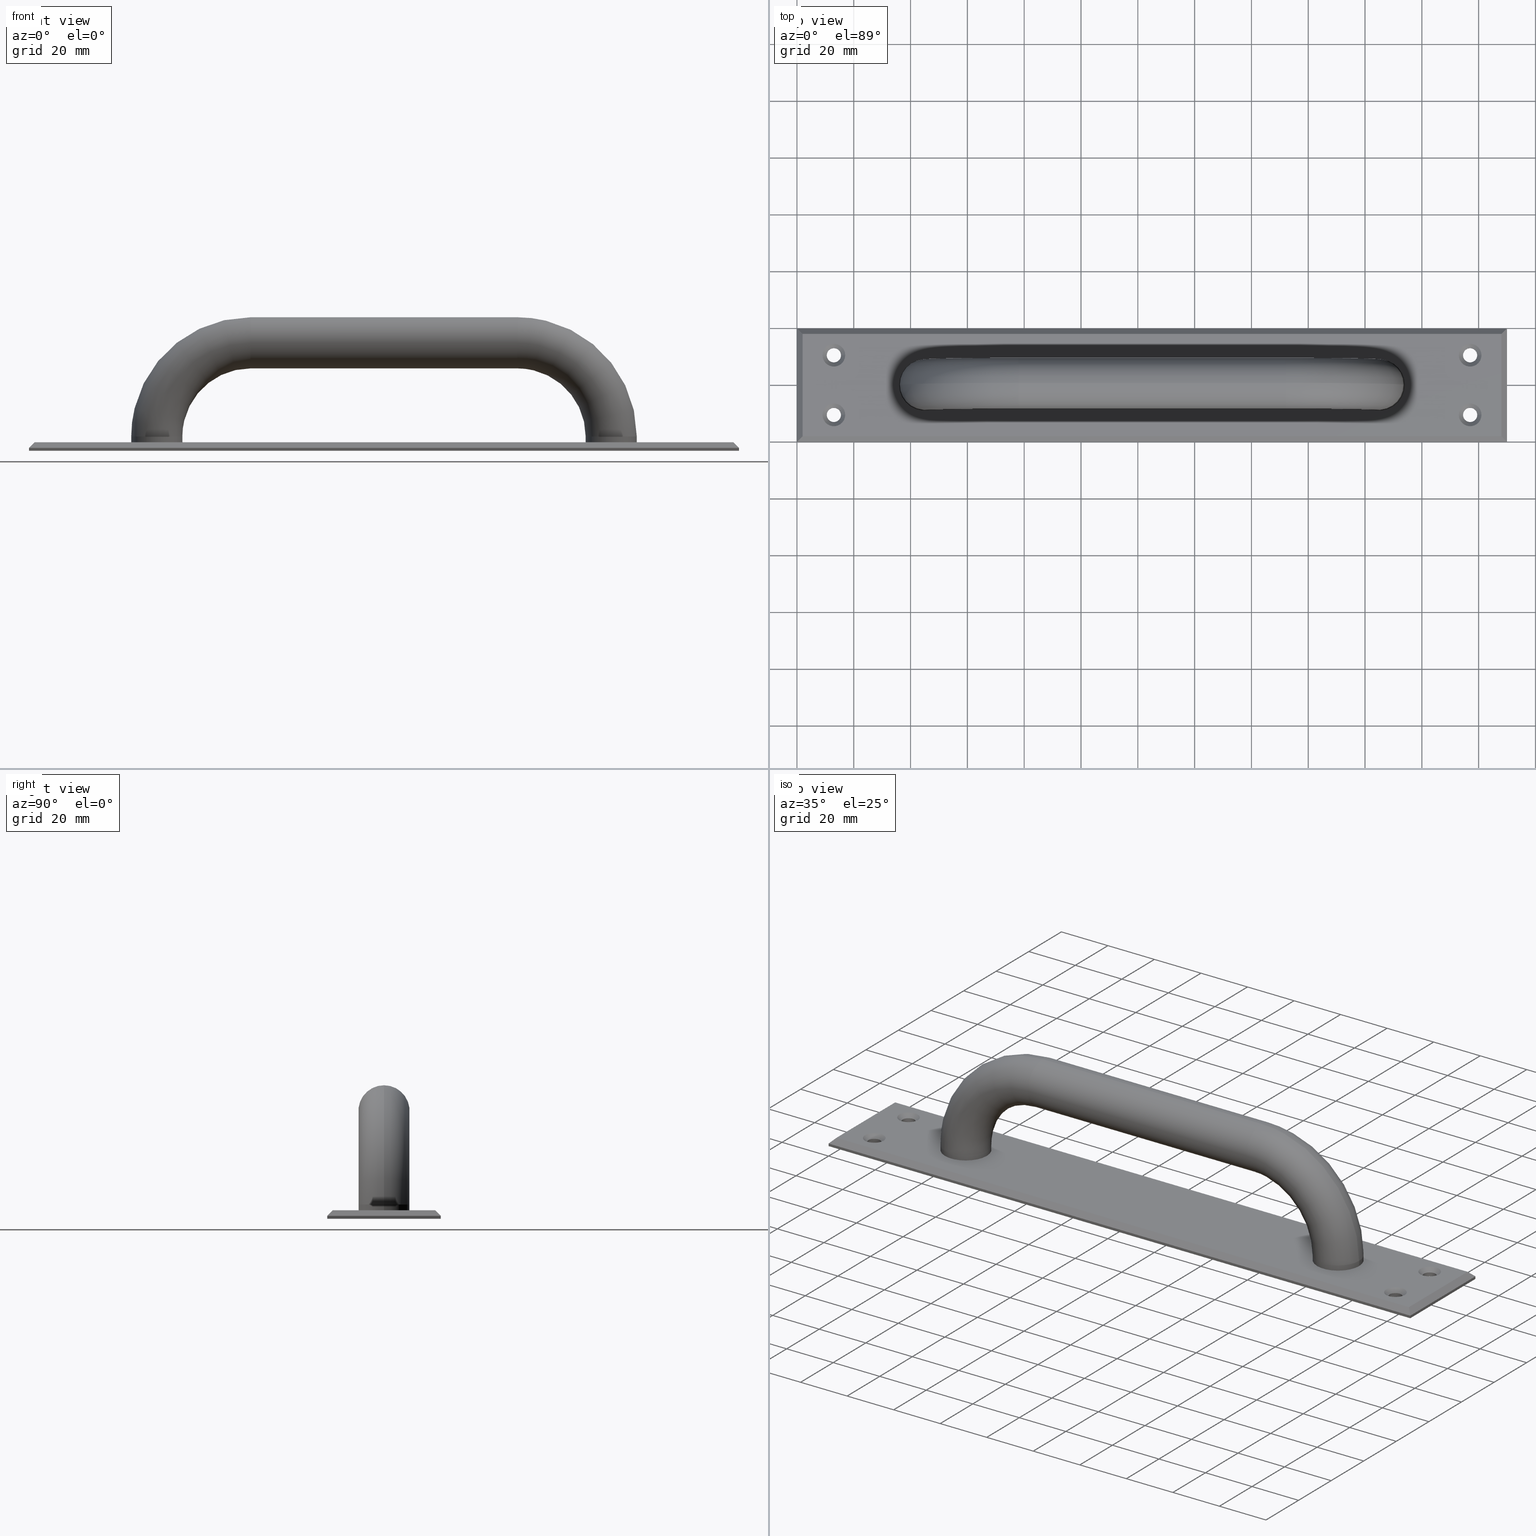
[diagram: canonical four-view strip — front | top / right | iso, engineering-drawing reading convention]
A machine part, canonical four-view strip (front | top / right | iso — engineering-drawing reading convention). The complete STEP part file that produces these views, byte-faithful:
ISO-10303-21;
HEADER;
/* Generated by software containing ST-Developer
 * from STEP Tools, Inc. (www.steptools.com) 
 */

FILE_DESCRIPTION(
/* description */ (''),
/* implementation_level */ '2;1');

FILE_NAME(
/* name */ '\\\\SYNOLOGYNAS\\web\\db2\\A-AL1-4\\\X2\B3C4BA74\X0\\\DR_A
-AL1-4.stp',
/* time_stamp */ '2024-07-04T09:51:43+09:00',
/* author */ ('user'),
/* organization */ (''),
/* preprocessor_version */ 'ST-DEVELOPER v15.6',
/* originating_system */ 'Autodesk Inventor 2015',
/* authorisation */ '');

FILE_SCHEMA (('AUTOMOTIVE_DESIGN { 1 0 10303 214 3 1 1 }'));
ENDSEC;

DATA;
#10=MECHANICAL_DESIGN_GEOMETRIC_PRESENTATION_REPRESENTATION('',(#13),#597);
#11=SHAPE_REPRESENTATION_RELATIONSHIP('SRR','None',#606,#12);
#12=ADVANCED_BREP_SHAPE_REPRESENTATION($,(#14),#596);
#13=STYLED_ITEM('',(#615),#14);
#14=MANIFOLD_SOLID_BREP('\X2\C194B9ACB4DC\X0\1',#355);
#15=LINE('',#555,#35);
#16=LINE('',#557,#36);
#17=LINE('',#559,#37);
#18=LINE('',#560,#38);
#19=LINE('',#563,#39);
#20=LINE('',#565,#40);
#21=LINE('',#566,#41);
#22=LINE('',#569,#42);
#23=LINE('',#570,#43);
#24=LINE('',#573,#44);
#25=LINE('',#574,#45);
#26=LINE('',#577,#46);
#27=LINE('',#579,#47);
#28=LINE('',#580,#48);
#29=LINE('',#583,#49);
#30=LINE('',#585,#50);
#31=LINE('',#586,#51);
#32=LINE('',#588,#52);
#33=LINE('',#590,#53);
#34=LINE('',#592,#54);
#35=VECTOR('',#464,3.46410161513775);
#36=VECTOR('',#465,36.);
#37=VECTOR('',#466,3.46410161513776);
#38=VECTOR('',#467,40.);
#39=VECTOR('',#470,246.);
#40=VECTOR('',#471,36.);
#41=VECTOR('',#472,246.);
#42=VECTOR('',#475,250.);
#43=VECTOR('',#476,3.46410161513775);
#44=VECTOR('',#479,3.46410161513775);
#45=VECTOR('',#480,40.);
#46=VECTOR('',#483,1.);
#47=VECTOR('',#484,40.);
#48=VECTOR('',#485,1.);
#49=VECTOR('',#488,1.);
#50=VECTOR('',#489,40.);
#51=VECTOR('',#490,1.);
#52=VECTOR('',#493,250.);
#53=VECTOR('',#496,250.);
#54=VECTOR('',#499,250.);
#55=PLANE('',#388);
#56=PLANE('',#389);
#57=PLANE('',#390);
#58=PLANE('',#391);
#59=PLANE('',#392);
#60=PLANE('',#393);
#61=PLANE('',#394);
#62=PLANE('',#395);
#63=PLANE('',#396);
#64=PLANE('',#397);
#65=CONICAL_SURFACE('',#368,3.25,45.);
#66=CONICAL_SURFACE('',#373,3.25,45.);
#67=CONICAL_SURFACE('',#378,3.25,45.);
#68=CONICAL_SURFACE('',#383,3.25,45.);
#69=TOROIDAL_SURFACE('',#363,33.,9.);
#70=TOROIDAL_SURFACE('',#367,33.,9.);
#71=FACE_BOUND('',#118,.T.);
#72=FACE_BOUND('',#120,.T.);
#73=FACE_BOUND('',#122,.T.);
#74=FACE_BOUND('',#124,.T.);
#75=FACE_BOUND('',#126,.T.);
#76=FACE_BOUND('',#128,.T.);
#77=FACE_BOUND('',#130,.T.);
#78=FACE_BOUND('',#132,.T.);
#79=FACE_BOUND('',#134,.T.);
#80=FACE_BOUND('',#136,.T.);
#81=FACE_BOUND('',#138,.T.);
#82=FACE_BOUND('',#140,.T.);
#83=FACE_BOUND('',#142,.T.);
#84=FACE_BOUND('',#145,.T.);
#85=FACE_BOUND('',#146,.T.);
#86=FACE_BOUND('',#147,.T.);
#87=FACE_BOUND('',#148,.T.);
#88=FACE_BOUND('',#149,.T.);
#89=FACE_BOUND('',#150,.T.);
#90=FACE_BOUND('',#159,.T.);
#91=FACE_BOUND('',#160,.T.);
#92=FACE_BOUND('',#161,.T.);
#93=FACE_BOUND('',#162,.T.);
#94=FACE_OUTER_BOUND('',#117,.T.);
#95=FACE_OUTER_BOUND('',#119,.T.);
#96=FACE_OUTER_BOUND('',#121,.T.);
#97=FACE_OUTER_BOUND('',#123,.T.);
#98=FACE_OUTER_BOUND('',#125,.T.);
#99=FACE_OUTER_BOUND('',#127,.T.);
#100=FACE_OUTER_BOUND('',#129,.T.);
#101=FACE_OUTER_BOUND('',#131,.T.);
#102=FACE_OUTER_BOUND('',#133,.T.);
#103=FACE_OUTER_BOUND('',#135,.T.);
#104=FACE_OUTER_BOUND('',#137,.T.);
#105=FACE_OUTER_BOUND('',#139,.T.);
#106=FACE_OUTER_BOUND('',#141,.T.);
#107=FACE_OUTER_BOUND('',#143,.T.);
#108=FACE_OUTER_BOUND('',#144,.T.);
#109=FACE_OUTER_BOUND('',#151,.T.);
#110=FACE_OUTER_BOUND('',#152,.T.);
#111=FACE_OUTER_BOUND('',#153,.T.);
#112=FACE_OUTER_BOUND('',#154,.T.);
#113=FACE_OUTER_BOUND('',#155,.T.);
#114=FACE_OUTER_BOUND('',#156,.T.);
#115=FACE_OUTER_BOUND('',#157,.T.);
#116=FACE_OUTER_BOUND('',#158,.T.);
#117=EDGE_LOOP('',(#249));
#118=EDGE_LOOP('',(#250));
#119=EDGE_LOOP('',(#251));
#120=EDGE_LOOP('',(#252));
#121=EDGE_LOOP('',(#253));
#122=EDGE_LOOP('',(#254));
#123=EDGE_LOOP('',(#255));
#124=EDGE_LOOP('',(#256));
#125=EDGE_LOOP('',(#257));
#126=EDGE_LOOP('',(#258));
#127=EDGE_LOOP('',(#259));
#128=EDGE_LOOP('',(#260));
#129=EDGE_LOOP('',(#261));
#130=EDGE_LOOP('',(#262));
#131=EDGE_LOOP('',(#263));
#132=EDGE_LOOP('',(#264));
#133=EDGE_LOOP('',(#265));
#134=EDGE_LOOP('',(#266));
#135=EDGE_LOOP('',(#267));
#136=EDGE_LOOP('',(#268));
#137=EDGE_LOOP('',(#269));
#138=EDGE_LOOP('',(#270));
#139=EDGE_LOOP('',(#271));
#140=EDGE_LOOP('',(#272));
#141=EDGE_LOOP('',(#273));
#142=EDGE_LOOP('',(#274));
#143=EDGE_LOOP('',(#275,#276,#277,#278));
#144=EDGE_LOOP('',(#279,#280,#281,#282));
#145=EDGE_LOOP('',(#283));
#146=EDGE_LOOP('',(#284));
#147=EDGE_LOOP('',(#285));
#148=EDGE_LOOP('',(#286));
#149=EDGE_LOOP('',(#287));
#150=EDGE_LOOP('',(#288));
#151=EDGE_LOOP('',(#289,#290,#291,#292));
#152=EDGE_LOOP('',(#293,#294,#295,#296));
#153=EDGE_LOOP('',(#297,#298,#299,#300));
#154=EDGE_LOOP('',(#301,#302,#303,#304));
#155=EDGE_LOOP('',(#305,#306,#307,#308));
#156=EDGE_LOOP('',(#309,#310,#311,#312));
#157=EDGE_LOOP('',(#313,#314,#315,#316));
#158=EDGE_LOOP('',(#317,#318,#319,#320));
#159=EDGE_LOOP('',(#321));
#160=EDGE_LOOP('',(#322));
#161=EDGE_LOOP('',(#323));
#162=EDGE_LOOP('',(#324));
#163=CIRCLE('',#358,9.);
#164=CIRCLE('',#359,9.);
#165=CIRCLE('',#361,9.);
#166=CIRCLE('',#362,9.);
#167=CIRCLE('',#364,9.);
#168=CIRCLE('',#366,9.);
#169=CIRCLE('',#369,4.);
#170=CIRCLE('',#370,2.5);
#171=CIRCLE('',#372,2.5);
#172=CIRCLE('',#374,4.);
#173=CIRCLE('',#375,2.5);
#174=CIRCLE('',#377,2.5);
#175=CIRCLE('',#379,4.);
#176=CIRCLE('',#380,2.5);
#177=CIRCLE('',#382,2.5);
#178=CIRCLE('',#384,4.);
#179=CIRCLE('',#385,2.5);
#180=CIRCLE('',#387,2.5);
#181=VERTEX_POINT('',#504);
#182=VERTEX_POINT('',#506);
#183=VERTEX_POINT('',#509);
#184=VERTEX_POINT('',#511);
#185=VERTEX_POINT('',#514);
#186=VERTEX_POINT('',#517);
#187=VERTEX_POINT('',#521);
#188=VERTEX_POINT('',#523);
#189=VERTEX_POINT('',#526);
#190=VERTEX_POINT('',#529);
#191=VERTEX_POINT('',#531);
#192=VERTEX_POINT('',#534);
#193=VERTEX_POINT('',#537);
#194=VERTEX_POINT('',#539);
#195=VERTEX_POINT('',#542);
#196=VERTEX_POINT('',#545);
#197=VERTEX_POINT('',#547);
#198=VERTEX_POINT('',#550);
#199=VERTEX_POINT('',#553);
#200=VERTEX_POINT('',#554);
#201=VERTEX_POINT('',#556);
#202=VERTEX_POINT('',#558);
#203=VERTEX_POINT('',#562);
#204=VERTEX_POINT('',#564);
#205=VERTEX_POINT('',#568);
#206=VERTEX_POINT('',#572);
#207=VERTEX_POINT('',#576);
#208=VERTEX_POINT('',#578);
#209=VERTEX_POINT('',#582);
#210=VERTEX_POINT('',#584);
#211=EDGE_CURVE('',#181,#181,#163,.T.);
#212=EDGE_CURVE('',#182,#182,#164,.T.);
#213=EDGE_CURVE('',#183,#183,#165,.T.);
#214=EDGE_CURVE('',#184,#184,#166,.T.);
#215=EDGE_CURVE('',#185,#185,#167,.T.);
#216=EDGE_CURVE('',#186,#186,#168,.T.);
#217=EDGE_CURVE('',#187,#187,#169,.T.);
#218=EDGE_CURVE('',#188,#188,#170,.T.);
#219=EDGE_CURVE('',#189,#189,#171,.T.);
#220=EDGE_CURVE('',#190,#190,#172,.T.);
#221=EDGE_CURVE('',#191,#191,#173,.T.);
#222=EDGE_CURVE('',#192,#192,#174,.T.);
#223=EDGE_CURVE('',#193,#193,#175,.T.);
#224=EDGE_CURVE('',#194,#194,#176,.T.);
#225=EDGE_CURVE('',#195,#195,#177,.T.);
#226=EDGE_CURVE('',#196,#196,#178,.T.);
#227=EDGE_CURVE('',#197,#197,#179,.T.);
#228=EDGE_CURVE('',#198,#198,#180,.T.);
#229=EDGE_CURVE('',#199,#200,#15,.T.);
#230=EDGE_CURVE('',#200,#201,#16,.T.);
#231=EDGE_CURVE('',#201,#202,#17,.T.);
#232=EDGE_CURVE('',#202,#199,#18,.T.);
#233=EDGE_CURVE('',#203,#200,#19,.T.);
#234=EDGE_CURVE('',#204,#203,#20,.T.);
#235=EDGE_CURVE('',#201,#204,#21,.T.);
#236=EDGE_CURVE('',#199,#205,#22,.T.);
#237=EDGE_CURVE('',#203,#205,#23,.T.);
#238=EDGE_CURVE('',#206,#204,#24,.T.);
#239=EDGE_CURVE('',#205,#206,#25,.T.);
#240=EDGE_CURVE('',#207,#205,#26,.T.);
#241=EDGE_CURVE('',#207,#208,#27,.T.);
#242=EDGE_CURVE('',#208,#206,#28,.T.);
#243=EDGE_CURVE('',#209,#202,#29,.T.);
#244=EDGE_CURVE('',#209,#210,#30,.T.);
#245=EDGE_CURVE('',#210,#199,#31,.T.);
#246=EDGE_CURVE('',#206,#202,#32,.T.);
#247=EDGE_CURVE('',#208,#209,#33,.T.);
#248=EDGE_CURVE('',#210,#207,#34,.T.);
#249=ORIENTED_EDGE('',*,*,#211,.F.);
#250=ORIENTED_EDGE('',*,*,#212,.F.);
#251=ORIENTED_EDGE('',*,*,#213,.T.);
#252=ORIENTED_EDGE('',*,*,#214,.F.);
#253=ORIENTED_EDGE('',*,*,#211,.T.);
#254=ORIENTED_EDGE('',*,*,#215,.F.);
#255=ORIENTED_EDGE('',*,*,#215,.T.);
#256=ORIENTED_EDGE('',*,*,#216,.F.);
#257=ORIENTED_EDGE('',*,*,#216,.T.);
#258=ORIENTED_EDGE('',*,*,#213,.F.);
#259=ORIENTED_EDGE('',*,*,#217,.F.);
#260=ORIENTED_EDGE('',*,*,#218,.F.);
#261=ORIENTED_EDGE('',*,*,#219,.F.);
#262=ORIENTED_EDGE('',*,*,#218,.T.);
#263=ORIENTED_EDGE('',*,*,#220,.F.);
#264=ORIENTED_EDGE('',*,*,#221,.F.);
#265=ORIENTED_EDGE('',*,*,#222,.F.);
#266=ORIENTED_EDGE('',*,*,#221,.T.);
#267=ORIENTED_EDGE('',*,*,#223,.F.);
#268=ORIENTED_EDGE('',*,*,#224,.F.);
#269=ORIENTED_EDGE('',*,*,#225,.F.);
#270=ORIENTED_EDGE('',*,*,#224,.T.);
#271=ORIENTED_EDGE('',*,*,#226,.F.);
#272=ORIENTED_EDGE('',*,*,#227,.F.);
#273=ORIENTED_EDGE('',*,*,#228,.F.);
#274=ORIENTED_EDGE('',*,*,#227,.T.);
#275=ORIENTED_EDGE('',*,*,#229,.T.);
#276=ORIENTED_EDGE('',*,*,#230,.T.);
#277=ORIENTED_EDGE('',*,*,#231,.T.);
#278=ORIENTED_EDGE('',*,*,#232,.T.);
#279=ORIENTED_EDGE('',*,*,#230,.F.);
#280=ORIENTED_EDGE('',*,*,#233,.F.);
#281=ORIENTED_EDGE('',*,*,#234,.F.);
#282=ORIENTED_EDGE('',*,*,#235,.F.);
#283=ORIENTED_EDGE('',*,*,#212,.T.);
#284=ORIENTED_EDGE('',*,*,#214,.T.);
#285=ORIENTED_EDGE('',*,*,#217,.T.);
#286=ORIENTED_EDGE('',*,*,#220,.T.);
#287=ORIENTED_EDGE('',*,*,#223,.T.);
#288=ORIENTED_EDGE('',*,*,#226,.T.);
#289=ORIENTED_EDGE('',*,*,#229,.F.);
#290=ORIENTED_EDGE('',*,*,#236,.T.);
#291=ORIENTED_EDGE('',*,*,#237,.F.);
#292=ORIENTED_EDGE('',*,*,#233,.T.);
#293=ORIENTED_EDGE('',*,*,#238,.T.);
#294=ORIENTED_EDGE('',*,*,#234,.T.);
#295=ORIENTED_EDGE('',*,*,#237,.T.);
#296=ORIENTED_EDGE('',*,*,#239,.T.);
#297=ORIENTED_EDGE('',*,*,#239,.F.);
#298=ORIENTED_EDGE('',*,*,#240,.F.);
#299=ORIENTED_EDGE('',*,*,#241,.T.);
#300=ORIENTED_EDGE('',*,*,#242,.T.);
#301=ORIENTED_EDGE('',*,*,#232,.F.);
#302=ORIENTED_EDGE('',*,*,#243,.F.);
#303=ORIENTED_EDGE('',*,*,#244,.T.);
#304=ORIENTED_EDGE('',*,*,#245,.T.);
#305=ORIENTED_EDGE('',*,*,#231,.F.);
#306=ORIENTED_EDGE('',*,*,#235,.T.);
#307=ORIENTED_EDGE('',*,*,#238,.F.);
#308=ORIENTED_EDGE('',*,*,#246,.T.);
#309=ORIENTED_EDGE('',*,*,#246,.F.);
#310=ORIENTED_EDGE('',*,*,#242,.F.);
#311=ORIENTED_EDGE('',*,*,#247,.T.);
#312=ORIENTED_EDGE('',*,*,#243,.T.);
#313=ORIENTED_EDGE('',*,*,#236,.F.);
#314=ORIENTED_EDGE('',*,*,#245,.F.);
#315=ORIENTED_EDGE('',*,*,#248,.T.);
#316=ORIENTED_EDGE('',*,*,#240,.T.);
#317=ORIENTED_EDGE('',*,*,#248,.F.);
#318=ORIENTED_EDGE('',*,*,#244,.F.);
#319=ORIENTED_EDGE('',*,*,#247,.F.);
#320=ORIENTED_EDGE('',*,*,#241,.F.);
#321=ORIENTED_EDGE('',*,*,#219,.T.);
#322=ORIENTED_EDGE('',*,*,#222,.T.);
#323=ORIENTED_EDGE('',*,*,#225,.T.);
#324=ORIENTED_EDGE('',*,*,#228,.T.);
#325=CYLINDRICAL_SURFACE('',#357,9.);
#326=CYLINDRICAL_SURFACE('',#360,9.);
#327=CYLINDRICAL_SURFACE('',#365,9.);
#328=CYLINDRICAL_SURFACE('',#371,2.5);
#329=CYLINDRICAL_SURFACE('',#376,2.5);
#330=CYLINDRICAL_SURFACE('',#381,2.5);
#331=CYLINDRICAL_SURFACE('',#386,2.5);
#332=ADVANCED_FACE('',(#94,#71),#325,.T.);
#333=ADVANCED_FACE('',(#95,#72),#326,.T.);
#334=ADVANCED_FACE('',(#96,#73),#69,.T.);
#335=ADVANCED_FACE('',(#97,#74),#327,.T.);
#336=ADVANCED_FACE('',(#98,#75),#70,.T.);
#337=ADVANCED_FACE('',(#99,#76),#65,.F.);
#338=ADVANCED_FACE('',(#100,#77),#328,.F.);
#339=ADVANCED_FACE('',(#101,#78),#66,.F.);
#340=ADVANCED_FACE('',(#102,#79),#329,.F.);
#341=ADVANCED_FACE('',(#103,#80),#67,.F.);
#342=ADVANCED_FACE('',(#104,#81),#330,.F.);
#343=ADVANCED_FACE('',(#105,#82),#68,.F.);
#344=ADVANCED_FACE('',(#106,#83),#331,.F.);
#345=ADVANCED_FACE('',(#107),#55,.T.);
#346=ADVANCED_FACE('',(#108,#84,#85,#86,#87,#88,#89),#56,.T.);
#347=ADVANCED_FACE('',(#109),#57,.T.);
#348=ADVANCED_FACE('',(#110),#58,.T.);
#349=ADVANCED_FACE('',(#111),#59,.T.);
#350=ADVANCED_FACE('',(#112),#60,.T.);
#351=ADVANCED_FACE('',(#113),#61,.T.);
#352=ADVANCED_FACE('',(#114),#62,.T.);
#353=ADVANCED_FACE('',(#115),#63,.T.);
#354=ADVANCED_FACE('',(#116,#90,#91,#92,#93),#64,.F.);
#355=CLOSED_SHELL('',(#332,#333,#334,#335,#336,#337,#338,#339,#340,#341,
#342,#343,#344,#345,#346,#347,#348,#349,#350,#351,#352,#353,#354));
#356=AXIS2_PLACEMENT_3D('placement',#502,#398,#399);
#357=AXIS2_PLACEMENT_3D('',#503,#400,#401);
#358=AXIS2_PLACEMENT_3D('',#505,#402,#403);
#359=AXIS2_PLACEMENT_3D('',#507,#404,#405);
#360=AXIS2_PLACEMENT_3D('',#508,#406,#407);
#361=AXIS2_PLACEMENT_3D('',#510,#408,#409);
#362=AXIS2_PLACEMENT_3D('',#512,#410,#411);
#363=AXIS2_PLACEMENT_3D('',#513,#412,#413);
#364=AXIS2_PLACEMENT_3D('',#515,#414,#415);
#365=AXIS2_PLACEMENT_3D('',#516,#416,#417);
#366=AXIS2_PLACEMENT_3D('',#518,#418,#419);
#367=AXIS2_PLACEMENT_3D('',#519,#420,#421);
#368=AXIS2_PLACEMENT_3D('',#520,#422,#423);
#369=AXIS2_PLACEMENT_3D('',#522,#424,#425);
#370=AXIS2_PLACEMENT_3D('',#524,#426,#427);
#371=AXIS2_PLACEMENT_3D('',#525,#428,#429);
#372=AXIS2_PLACEMENT_3D('',#527,#430,#431);
#373=AXIS2_PLACEMENT_3D('',#528,#432,#433);
#374=AXIS2_PLACEMENT_3D('',#530,#434,#435);
#375=AXIS2_PLACEMENT_3D('',#532,#436,#437);
#376=AXIS2_PLACEMENT_3D('',#533,#438,#439);
#377=AXIS2_PLACEMENT_3D('',#535,#440,#441);
#378=AXIS2_PLACEMENT_3D('',#536,#442,#443);
#379=AXIS2_PLACEMENT_3D('',#538,#444,#445);
#380=AXIS2_PLACEMENT_3D('',#540,#446,#447);
#381=AXIS2_PLACEMENT_3D('',#541,#448,#449);
#382=AXIS2_PLACEMENT_3D('',#543,#450,#451);
#383=AXIS2_PLACEMENT_3D('',#544,#452,#453);
#384=AXIS2_PLACEMENT_3D('',#546,#454,#455);
#385=AXIS2_PLACEMENT_3D('',#548,#456,#457);
#386=AXIS2_PLACEMENT_3D('',#549,#458,#459);
#387=AXIS2_PLACEMENT_3D('',#551,#460,#461);
#388=AXIS2_PLACEMENT_3D('',#552,#462,#463);
#389=AXIS2_PLACEMENT_3D('',#561,#468,#469);
#390=AXIS2_PLACEMENT_3D('',#567,#473,#474);
#391=AXIS2_PLACEMENT_3D('',#571,#477,#478);
#392=AXIS2_PLACEMENT_3D('',#575,#481,#482);
#393=AXIS2_PLACEMENT_3D('',#581,#486,#487);
#394=AXIS2_PLACEMENT_3D('',#587,#491,#492);
#395=AXIS2_PLACEMENT_3D('',#589,#494,#495);
#396=AXIS2_PLACEMENT_3D('',#591,#497,#498);
#397=AXIS2_PLACEMENT_3D('',#593,#500,#501);
#398=DIRECTION('axis',(0.,0.,1.));
#399=DIRECTION('refdir',(1.,0.,0.));
#400=DIRECTION('center_axis',(0.,0.,-1.));
#401=DIRECTION('ref_axis',(1.,0.,0.));
#402=DIRECTION('center_axis',(2.74191443960455E-15,0.,1.));
#403=DIRECTION('ref_axis',(1.,0.,-2.74191443960455E-15));
#404=DIRECTION('center_axis',(0.,0.,-1.));
#405=DIRECTION('ref_axis',(1.,0.,0.));
#406=DIRECTION('center_axis',(0.,0.,1.));
#407=DIRECTION('ref_axis',(-1.,0.,0.));
#408=DIRECTION('center_axis',(0.,0.,-1.));
#409=DIRECTION('ref_axis',(-1.,0.,0.));
#410=DIRECTION('center_axis',(0.,0.,-1.));
#411=DIRECTION('ref_axis',(-1.,0.,0.));
#412=DIRECTION('center_axis',(0.,-1.,0.));
#413=DIRECTION('ref_axis',(0.,0.,-1.));
#414=DIRECTION('center_axis',(1.,0.,-2.52323414687536E-16));
#415=DIRECTION('ref_axis',(-2.52323414687536E-16,0.,-1.));
#416=DIRECTION('center_axis',(-1.,0.,-1.88974131851091E-16));
#417=DIRECTION('ref_axis',(1.88974131851091E-16,0.,-1.));
#418=DIRECTION('center_axis',(1.,0.,-2.52323414687536E-16));
#419=DIRECTION('ref_axis',(-2.52323414687536E-16,0.,-1.));
#420=DIRECTION('center_axis',(0.,-1.,0.));
#421=DIRECTION('ref_axis',(0.,0.,-1.));
#422=DIRECTION('center_axis',(0.,0.,1.));
#423=DIRECTION('ref_axis',(1.,0.,0.));
#424=DIRECTION('center_axis',(0.,0.,-1.));
#425=DIRECTION('ref_axis',(1.,0.,0.));
#426=DIRECTION('center_axis',(0.,0.,1.));
#427=DIRECTION('ref_axis',(1.,0.,0.));
#428=DIRECTION('center_axis',(0.,0.,1.));
#429=DIRECTION('ref_axis',(1.,0.,0.));
#430=DIRECTION('center_axis',(0.,0.,1.));
#431=DIRECTION('ref_axis',(1.,0.,0.));
#432=DIRECTION('center_axis',(0.,0.,1.));
#433=DIRECTION('ref_axis',(1.,0.,0.));
#434=DIRECTION('center_axis',(0.,0.,-1.));
#435=DIRECTION('ref_axis',(1.,0.,0.));
#436=DIRECTION('center_axis',(0.,0.,1.));
#437=DIRECTION('ref_axis',(1.,0.,0.));
#438=DIRECTION('center_axis',(0.,0.,1.));
#439=DIRECTION('ref_axis',(1.,0.,0.));
#440=DIRECTION('center_axis',(0.,0.,1.));
#441=DIRECTION('ref_axis',(1.,0.,0.));
#442=DIRECTION('center_axis',(0.,0.,1.));
#443=DIRECTION('ref_axis',(1.,0.,0.));
#444=DIRECTION('center_axis',(0.,0.,-1.));
#445=DIRECTION('ref_axis',(1.,0.,0.));
#446=DIRECTION('center_axis',(0.,0.,1.));
#447=DIRECTION('ref_axis',(1.,0.,0.));
#448=DIRECTION('center_axis',(0.,0.,1.));
#449=DIRECTION('ref_axis',(1.,0.,0.));
#450=DIRECTION('center_axis',(0.,0.,1.));
#451=DIRECTION('ref_axis',(1.,0.,0.));
#452=DIRECTION('center_axis',(0.,0.,1.));
#453=DIRECTION('ref_axis',(1.,0.,0.));
#454=DIRECTION('center_axis',(0.,0.,-1.));
#455=DIRECTION('ref_axis',(1.,0.,0.));
#456=DIRECTION('center_axis',(0.,0.,1.));
#457=DIRECTION('ref_axis',(1.,0.,0.));
#458=DIRECTION('center_axis',(0.,0.,1.));
#459=DIRECTION('ref_axis',(1.,0.,0.));
#460=DIRECTION('center_axis',(0.,0.,1.));
#461=DIRECTION('ref_axis',(1.,0.,0.));
#462=DIRECTION('center_axis',(-0.707106781186548,-2.59896238222037E-16,
0.707106781186547));
#463=DIRECTION('ref_axis',(0.707106781186547,0.,0.707106781186548));
#464=DIRECTION('',(0.577350269189625,0.577350269189626,0.577350269189626));
#465=DIRECTION('',(-3.67548784903353E-16,1.,0.));
#466=DIRECTION('',(-0.577350269189624,0.577350269189627,-0.577350269189626));
#467=DIRECTION('',(3.67548784903353E-16,-1.,0.));
#468=DIRECTION('center_axis',(0.,0.,1.));
#469=DIRECTION('ref_axis',(1.,0.,0.));
#470=DIRECTION('',(-1.,0.,0.));
#471=DIRECTION('',(0.,-1.,0.));
#472=DIRECTION('',(1.,-1.59872115546023E-16,0.));
#473=DIRECTION('center_axis',(0.,-0.707106781186548,0.707106781186547));
#474=DIRECTION('ref_axis',(1.,0.,0.));
#475=DIRECTION('',(1.,0.,0.));
#476=DIRECTION('',(0.577350269189625,-0.577350269189626,-0.577350269189627));
#477=DIRECTION('center_axis',(0.707106781186549,0.,0.707106781186546));
#478=DIRECTION('ref_axis',(0.707106781186547,0.,-0.707106781186548));
#479=DIRECTION('',(-0.577350269189624,-0.577350269189628,0.577350269189626));
#480=DIRECTION('',(0.,1.,0.));
#481=DIRECTION('center_axis',(1.,0.,0.));
#482=DIRECTION('ref_axis',(0.,1.,0.));
#483=DIRECTION('',(0.,0.,1.));
#484=DIRECTION('',(0.,1.,0.));
#485=DIRECTION('',(0.,0.,1.));
#486=DIRECTION('center_axis',(-1.,-3.67548784903353E-16,0.));
#487=DIRECTION('ref_axis',(3.67548784903353E-16,-1.,0.));
#488=DIRECTION('',(0.,0.,1.));
#489=DIRECTION('',(3.67548784903353E-16,-1.,0.));
#490=DIRECTION('',(0.,0.,1.));
#491=DIRECTION('center_axis',(1.13046657025232E-16,0.707106781186546,0.707106781186549));
#492=DIRECTION('ref_axis',(1.,0.,-1.55431223447522E-16));
#493=DIRECTION('',(-1.,1.59872115546023E-16,0.));
#494=DIRECTION('center_axis',(1.59872115546023E-16,1.,0.));
#495=DIRECTION('ref_axis',(-1.,0.,0.));
#496=DIRECTION('',(-1.,1.59872115546023E-16,0.));
#497=DIRECTION('center_axis',(0.,-1.,0.));
#498=DIRECTION('ref_axis',(1.,0.,0.));
#499=DIRECTION('',(1.,0.,0.));
#500=DIRECTION('center_axis',(0.,0.,1.));
#501=DIRECTION('ref_axis',(1.,0.,0.));
#502=CARTESIAN_POINT('',(0.,0.,0.));
#503=CARTESIAN_POINT('Origin',(45.,20.,5.00000000000004));
#504=CARTESIAN_POINT('',(36.,20.,5.00000000000007));
#505=CARTESIAN_POINT('Origin',(45.,20.,5.00000000000004));
#506=CARTESIAN_POINT('',(36.,20.,3.));
#507=CARTESIAN_POINT('Origin',(45.,20.,3.));
#508=CARTESIAN_POINT('Origin',(205.,20.,0.));
#509=CARTESIAN_POINT('',(214.,20.,5.));
#510=CARTESIAN_POINT('Origin',(205.,20.,5.));
#511=CARTESIAN_POINT('',(214.,20.,3.));
#512=CARTESIAN_POINT('Origin',(205.,20.,3.));
#513=CARTESIAN_POINT('Origin',(78.,20.,4.99999999999996));
#514=CARTESIAN_POINT('',(78.,20.,47.));
#515=CARTESIAN_POINT('Origin',(78.,20.,38.));
#516=CARTESIAN_POINT('Origin',(172.,20.,38.));
#517=CARTESIAN_POINT('',(172.,20.,47.));
#518=CARTESIAN_POINT('Origin',(172.,20.,38.));
#519=CARTESIAN_POINT('Origin',(172.,20.,4.99999999999999));
#520=CARTESIAN_POINT('Origin',(13.,9.50000000000001,2.25));
#521=CARTESIAN_POINT('',(17.,9.50000000000001,3.));
#522=CARTESIAN_POINT('Origin',(13.,9.50000000000001,3.));
#523=CARTESIAN_POINT('',(15.5,9.50000000000001,1.5));
#524=CARTESIAN_POINT('Origin',(13.,9.50000000000001,1.50000000000001));
#525=CARTESIAN_POINT('Origin',(13.,9.50000000000001,-250.197551330972));
#526=CARTESIAN_POINT('',(10.5,9.50000000000001,0.));
#527=CARTESIAN_POINT('Origin',(13.,9.50000000000001,0.));
#528=CARTESIAN_POINT('Origin',(13.,30.5,2.25));
#529=CARTESIAN_POINT('',(17.,30.5,3.));
#530=CARTESIAN_POINT('Origin',(13.,30.5,3.));
#531=CARTESIAN_POINT('',(15.5,30.5,1.5));
#532=CARTESIAN_POINT('Origin',(13.,30.5,1.50000000000001));
#533=CARTESIAN_POINT('Origin',(13.,30.5,-250.197551330972));
#534=CARTESIAN_POINT('',(10.5,30.5,0.));
#535=CARTESIAN_POINT('Origin',(13.,30.5,0.));
#536=CARTESIAN_POINT('Origin',(237.,30.5,2.25));
#537=CARTESIAN_POINT('',(241.,30.5,3.));
#538=CARTESIAN_POINT('Origin',(237.,30.5,3.));
#539=CARTESIAN_POINT('',(239.5,30.5,1.5));
#540=CARTESIAN_POINT('Origin',(237.,30.5,1.50000000000001));
#541=CARTESIAN_POINT('Origin',(237.,30.5,-250.197551330972));
#542=CARTESIAN_POINT('',(234.5,30.5,0.));
#543=CARTESIAN_POINT('Origin',(237.,30.5,0.));
#544=CARTESIAN_POINT('Origin',(237.,9.50000000000001,2.25));
#545=CARTESIAN_POINT('',(241.,9.50000000000001,3.));
#546=CARTESIAN_POINT('Origin',(237.,9.50000000000001,3.));
#547=CARTESIAN_POINT('',(239.5,9.50000000000001,1.5));
#548=CARTESIAN_POINT('Origin',(237.,9.50000000000001,1.50000000000001));
#549=CARTESIAN_POINT('Origin',(237.,9.50000000000001,-250.197551330972));
#550=CARTESIAN_POINT('',(234.5,9.50000000000001,0.));
#551=CARTESIAN_POINT('Origin',(237.,9.50000000000001,0.));
#552=CARTESIAN_POINT('Origin',(0.999999999999986,30.,2.));
#553=CARTESIAN_POINT('',(0.,0.,1.));
#554=CARTESIAN_POINT('',(1.99999999999999,2.,3.));
#555=CARTESIAN_POINT('',(16.0833333333333,16.0833333333333,17.0833333333333));
#556=CARTESIAN_POINT('',(1.99999999999999,38.,3.));
#557=CARTESIAN_POINT('',(1.99999999999998,30.,3.));
#558=CARTESIAN_POINT('',(-1.47019513961341E-14,40.,1.));
#559=CARTESIAN_POINT('',(33.5833333333332,6.41666666666667,34.5833333333333));
#560=CARTESIAN_POINT('',(-1.11022302462516E-14,30.,1.));
#561=CARTESIAN_POINT('Origin',(125.,20.,3.));
#562=CARTESIAN_POINT('',(248.,2.,3.));
#563=CARTESIAN_POINT('',(62.5,2.,3.));
#564=CARTESIAN_POINT('',(248.,38.,3.));
#565=CARTESIAN_POINT('',(248.,10.,3.));
#566=CARTESIAN_POINT('',(187.5,38.,3.));
#567=CARTESIAN_POINT('Origin',(62.5,1.,2.));
#568=CARTESIAN_POINT('',(250.,0.,1.));
#569=CARTESIAN_POINT('',(62.5,0.,1.));
#570=CARTESIAN_POINT('',(216.416666666667,33.5833333333333,34.5833333333333));
#571=CARTESIAN_POINT('Origin',(249.,10.,2.));
#572=CARTESIAN_POINT('',(250.,40.,1.));
#573=CARTESIAN_POINT('',(233.916666666667,23.9166666666666,17.0833333333333));
#574=CARTESIAN_POINT('',(250.,10.,1.));
#575=CARTESIAN_POINT('Origin',(250.,0.,0.));
#576=CARTESIAN_POINT('',(250.,0.,0.));
#577=CARTESIAN_POINT('',(250.,0.,0.));
#578=CARTESIAN_POINT('',(250.,40.,0.));
#579=CARTESIAN_POINT('',(250.,0.,0.));
#580=CARTESIAN_POINT('',(250.,40.,0.));
#581=CARTESIAN_POINT('Origin',(-1.47019513961341E-14,40.,0.));
#582=CARTESIAN_POINT('',(-1.47019513961341E-14,40.,0.));
#583=CARTESIAN_POINT('',(-1.47019513961341E-14,40.,0.));
#584=CARTESIAN_POINT('',(0.,0.,0.));
#585=CARTESIAN_POINT('',(-1.47019513961341E-14,40.,0.));
#586=CARTESIAN_POINT('',(0.,0.,0.));
#587=CARTESIAN_POINT('Origin',(187.5,39.,2.));
#588=CARTESIAN_POINT('',(187.5,40.,1.));
#589=CARTESIAN_POINT('Origin',(250.,40.,0.));
#590=CARTESIAN_POINT('',(250.,40.,0.));
#591=CARTESIAN_POINT('Origin',(0.,0.,0.));
#592=CARTESIAN_POINT('',(0.,0.,0.));
#593=CARTESIAN_POINT('Origin',(125.,20.,0.));
#594=UNCERTAINTY_MEASURE_WITH_UNIT(LENGTH_MEASURE(0.01),#598,
'DISTANCE_ACCURACY_VALUE',
'Maximum model space distance between geometric entities at asserted c
onnectivities');
#595=UNCERTAINTY_MEASURE_WITH_UNIT(LENGTH_MEASURE(1.E-6),#598,
'DISTANCE_ACCURACY_VALUE',
'Maximum model space distance between geometric entities at asserted c
onnectivities');
#596=(
GEOMETRIC_REPRESENTATION_CONTEXT(3)
GLOBAL_UNCERTAINTY_ASSIGNED_CONTEXT((#594))
GLOBAL_UNIT_ASSIGNED_CONTEXT((#598,#601,#599))
REPRESENTATION_CONTEXT('','3D')
);
#597=(
GEOMETRIC_REPRESENTATION_CONTEXT(3)
GLOBAL_UNCERTAINTY_ASSIGNED_CONTEXT((#595))
GLOBAL_UNIT_ASSIGNED_CONTEXT((#598,#601,#599))
REPRESENTATION_CONTEXT('','3D')
);
#598=(
LENGTH_UNIT()
NAMED_UNIT(*)
SI_UNIT(.MILLI.,.METRE.)
);
#599=(
NAMED_UNIT(*)
SI_UNIT($,.STERADIAN.)
SOLID_ANGLE_UNIT()
);
#600=DIMENSIONAL_EXPONENTS(0.,0.,0.,0.,0.,0.,0.);
#601=(
CONVERSION_BASED_UNIT('degree',#603)
NAMED_UNIT(#600)
PLANE_ANGLE_UNIT()
);
#602=(
NAMED_UNIT(*)
PLANE_ANGLE_UNIT()
SI_UNIT($,.RADIAN.)
);
#603=PLANE_ANGLE_MEASURE_WITH_UNIT(PLANE_ANGLE_MEASURE(0.01745329252),#602);
#604=SHAPE_DEFINITION_REPRESENTATION(#605,#606);
#605=PRODUCT_DEFINITION_SHAPE('',$,#608);
#606=SHAPE_REPRESENTATION('',(#356),#596);
#607=PRODUCT_DEFINITION_CONTEXT('part definition',#612,'design');
#608=PRODUCT_DEFINITION('DR_A-AL1-4','DR_A-AL1-4',#609,#607);
#609=PRODUCT_DEFINITION_FORMATION('',$,#614);
#610=PRODUCT_RELATED_PRODUCT_CATEGORY('DR_A-AL1-4','DR_A-AL1-4',(#614));
#611=APPLICATION_PROTOCOL_DEFINITION('international standard',
'automotive_design',2009,#612);
#612=APPLICATION_CONTEXT(
'Core Data for Automotive Mechanical Design Process');
#613=PRODUCT_CONTEXT('part definition',#612,'mechanical');
#614=PRODUCT('DR_A-AL1-4','DR_A-AL1-4',$,(#613));
#615=PRESENTATION_STYLE_ASSIGNMENT((#616));
#616=SURFACE_STYLE_USAGE(.BOTH.,#617);
#617=SURFACE_SIDE_STYLE($,(#618));
#618=SURFACE_STYLE_FILL_AREA(#619);
#619=FILL_AREA_STYLE($,(#620));
#620=FILL_AREA_STYLE_COLOUR($,#621);
#621=COLOUR_RGB('',1.,1.,1.);
ENDSEC;
END-ISO-10303-21;
